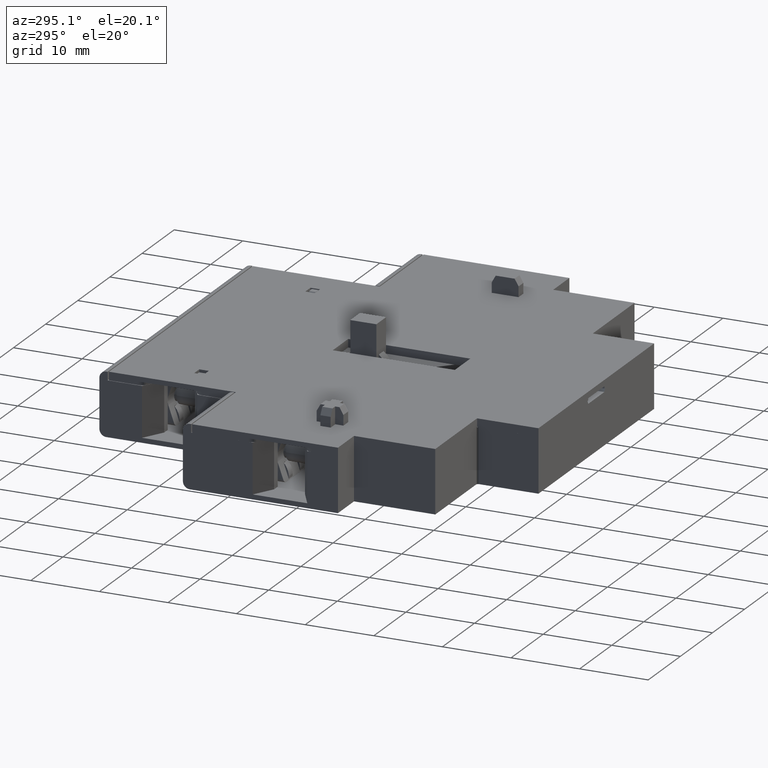
[diagram: clean part render]
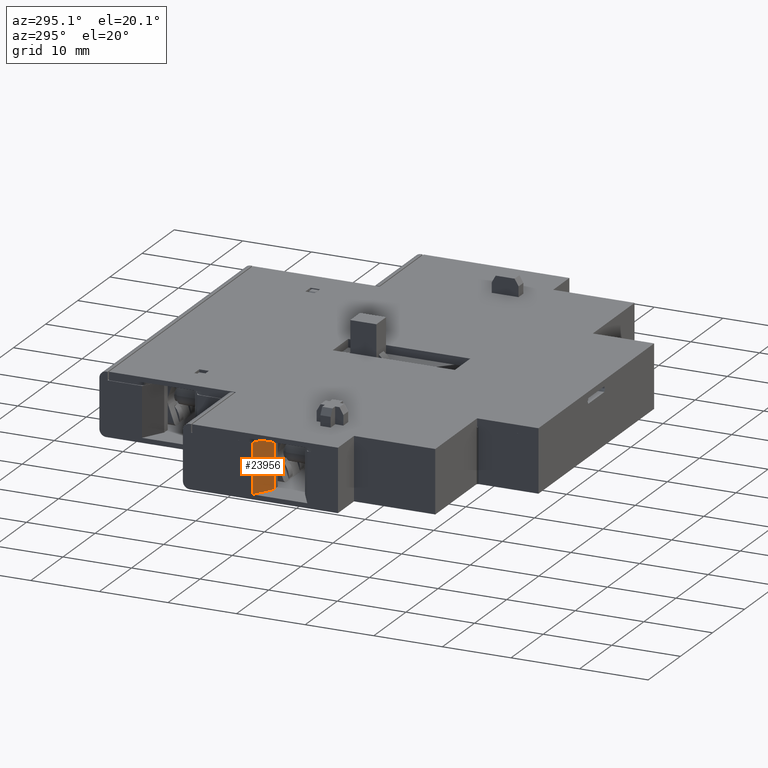
[diagram: same view with one face highlighted and labeled with its STEP entity id]
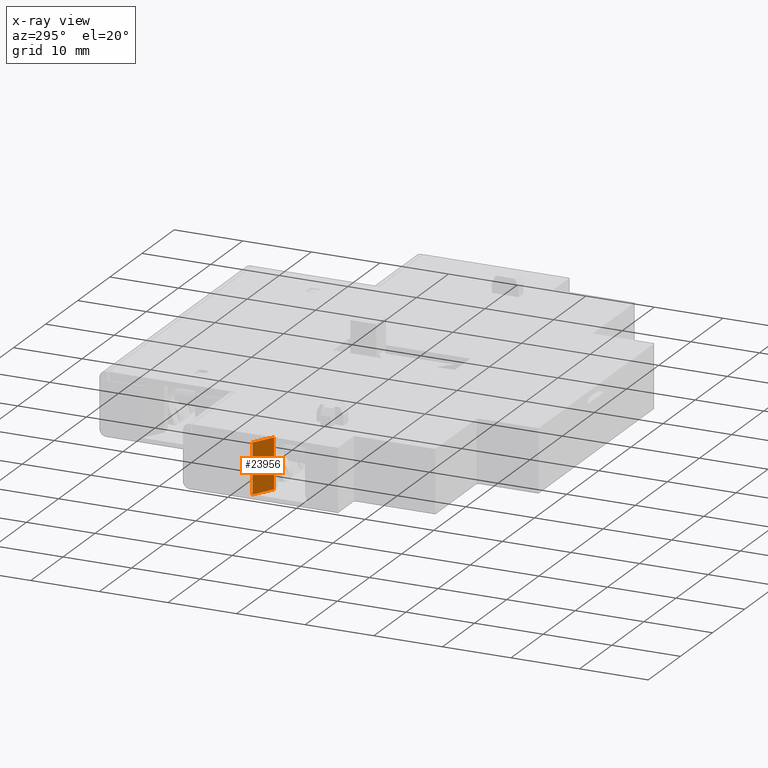
[diagram: x-ray of the same camera — body ghosted, the highlighted face saturated]
A machine part, auxiliary view. The second image highlights one B-rep face of the part: STEP entity #23956.
The next image is the same camera in x-ray: the body ghosted, the highlighted face saturated — about 0% of this face is hidden behind the body in this view.
In plain terms, the highlighted planar face has unit normal (0.5, 0.866, 0).
Its self-contained STEP definition (entity closure, byte-faithful):
#9206=DIRECTION('',(8.660254037843E-1,-5.000000000003E-1,0.E0));
#9207=VECTOR('',#9206,3.464101615138E0);
#9208=CARTESIAN_POINT('',(-2.311889453222E1,5.025175731293E1,5.3E0));
#9209=LINE('',#9208,#9207);
#12079=DIRECTION('',(0.E0,0.E0,1.E0));
#12080=VECTOR('',#12079,7.3E0);
#12081=CARTESIAN_POINT('',(-2.311889453222E1,5.025175731293E1,5.3E0));
#12082=LINE('',#12081,#12080);
#12083=DIRECTION('',(0.E0,0.E0,-1.E0));
#12084=VECTOR('',#12083,7.3E0);
#12085=CARTESIAN_POINT('',(-2.011889453222E1,4.851970650536E1,1.26E1));
#12086=LINE('',#12085,#12084);
#12095=DIRECTION('',(-8.660254037843E-1,5.000000000003E-1,0.E0));
#12096=VECTOR('',#12095,3.464101615138E0);
#12097=CARTESIAN_POINT('',(-2.011889453222E1,4.851970650536E1,1.26E1));
#12098=LINE('',#12097,#12096);
#16482=CARTESIAN_POINT('',(-2.311889453222E1,5.025175731293E1,5.3E0));
#16483=CARTESIAN_POINT('',(-2.011889453222E1,4.851970650536E1,5.3E0));
#16484=VERTEX_POINT('',#16482);
#16485=VERTEX_POINT('',#16483);
#16506=CARTESIAN_POINT('',(-2.311889453222E1,5.025175731293E1,1.26E1));
#16507=VERTEX_POINT('',#16506);
#17244=CARTESIAN_POINT('',(-2.011889453222E1,4.851970650536E1,1.26E1));
#17245=VERTEX_POINT('',#17244);
#23944=CARTESIAN_POINT('',(-2.161889453222E1,4.938573190914E1,8.95E0));
#23945=DIRECTION('',(5.000000000003E-1,8.660254037843E-1,0.E0));
#23946=DIRECTION('',(-8.660254037843E-1,5.000000000003E-1,0.E0));
#23947=AXIS2_PLACEMENT_3D('',#23944,#23945,#23946);
#23948=PLANE('',#23947);
#23949=ORIENTED_EDGE('',*,*,#20625,.T.);
#23951=ORIENTED_EDGE('',*,*,#23950,.F.);
#23952=ORIENTED_EDGE('',*,*,#23935,.T.);
#23953=ORIENTED_EDGE('',*,*,#20582,.F.);
#23954=EDGE_LOOP('',(#23949,#23951,#23952,#23953));
#23955=FACE_OUTER_BOUND('',#23954,.F.);
#23956=ADVANCED_FACE('',(#23955),#23948,.F.);
#20582=EDGE_CURVE('',#16484,#16485,#9209,.T.);
#20625=EDGE_CURVE('',#16484,#16507,#12082,.T.);
#23935=EDGE_CURVE('',#17245,#16485,#12086,.T.);
#23950=EDGE_CURVE('',#17245,#16507,#12098,.T.);